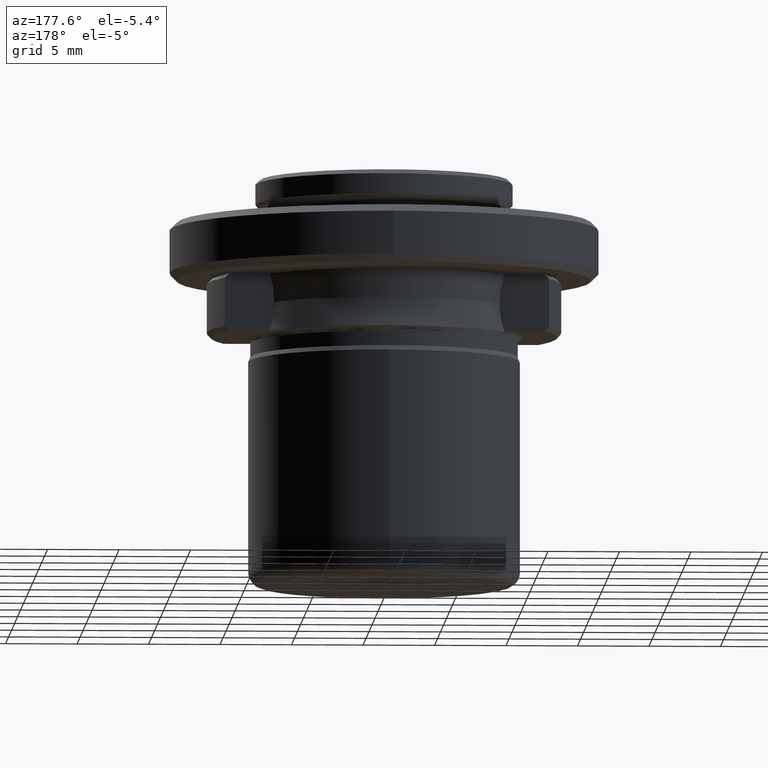
[diagram: clean part render]
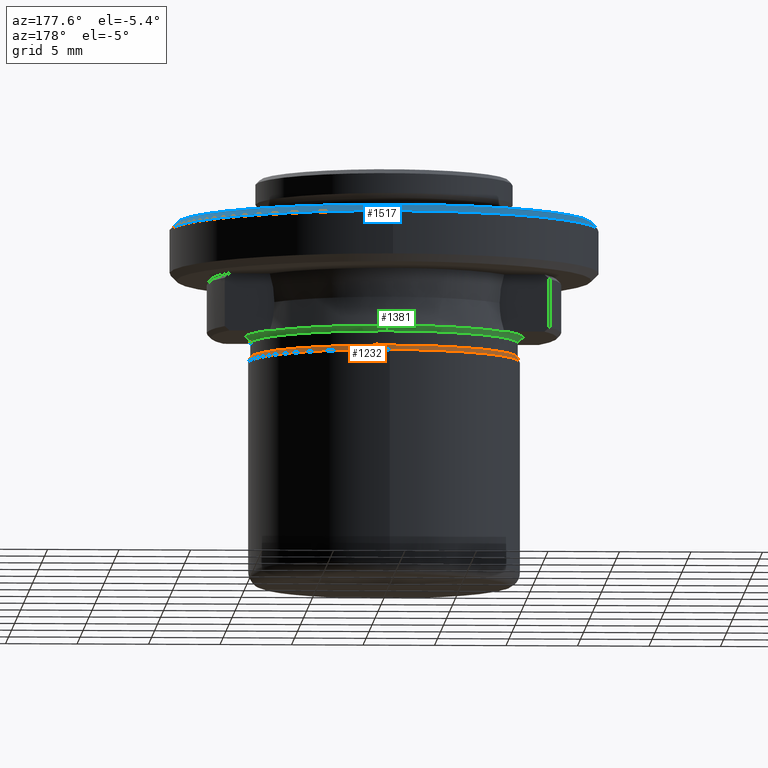
[diagram: same view with three faces highlighted in distinct colors, each labeled with its STEP entity id]
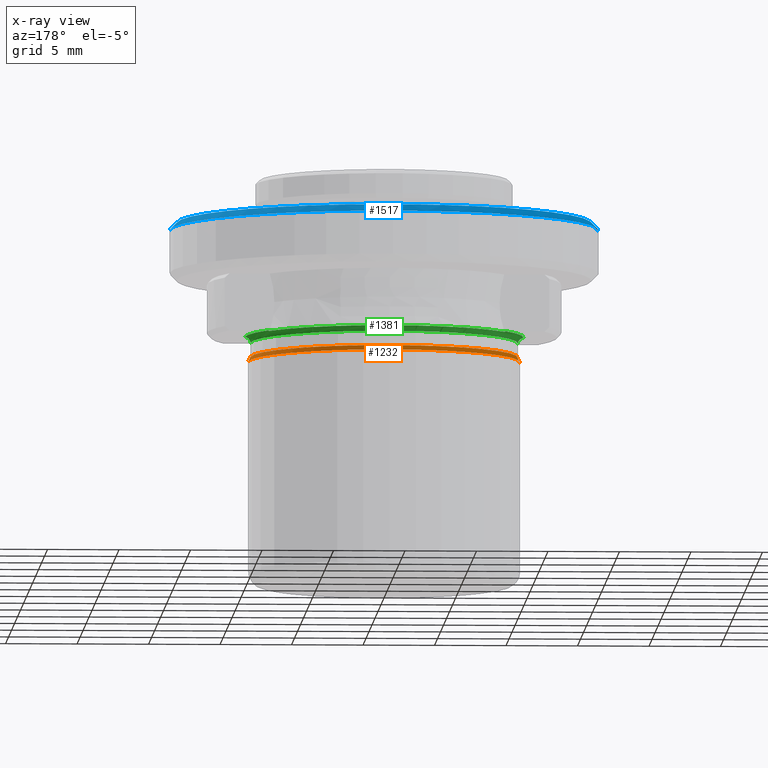
[diagram: x-ray of the same camera — body ghosted, the three highlighted faces saturated]
A machine part, auxiliary view with three faces highlighted in distinct colors.
The next image is the same camera in x-ray (body ghosted, the three faces saturated) — at least one of them is partly hidden behind the body in this view.
Their STEP definitions:

[orange] entity #1232 — the highlighted conical surface has half-angle 25 deg.
#31 = DIRECTION ( 'NONE',  ( -1.000000000000000000, 0.0000000000000000000, 0.0000000000000000000 ) ) ;
#74 = VECTOR ( 'NONE', #324, 1000.000000000000000 ) ;
#76 = VERTEX_POINT ( 'NONE', #841 ) ;
#85 = EDGE_CURVE ( 'NONE', #511, #76, #1617, .T. ) ;
#140 = VERTEX_POINT ( 'NONE', #784 ) ;
#222 = CARTESIAN_POINT ( 'NONE',  ( -9.350000000000003200, 0.0000000000000000000, 3.351676037999996800 ) ) ;
#298 = EDGE_CURVE ( 'NONE', #919, #140, #753, .T. ) ;
#324 = DIRECTION ( 'NONE',  ( 0.4226182618231769700, 5.175581016029717500E-017, -0.9063077869981900300 ) ) ;
#330 = DIRECTION ( 'NONE',  ( 0.0000000000000000000, 0.0000000000000000000, -1.000000000000000000 ) ) ;
#334 = CARTESIAN_POINT ( 'NONE',  ( -9.350000000000003200, 0.0000000000000000000, 3.351676037999999500 ) ) ;
#335 = CARTESIAN_POINT ( 'NONE',  ( 0.0000000000000000000, 0.0000000000000000000, 3.030000000000088200 ) ) ;
#387 = AXIS2_PLACEMENT_3D ( 'NONE', #1310, #477, #1459 ) ;
#409 = CIRCLE ( 'NONE', #387, 9.350000000000003200 ) ;
#472 = CARTESIAN_POINT ( 'NONE',  ( 9.350000000000003200, 1.154229608196380700E-015, 3.351676037999996800 ) ) ;
#477 = DIRECTION ( 'NONE',  ( -0.0000000000000000000, -0.0000000000000000000, -1.000000000000000000 ) ) ;
#482 = DIRECTION ( 'NONE',  ( -1.000000000000000000, 0.0000000000000000000, -9.312726028928122700E-015 ) ) ;
#511 = VERTEX_POINT ( 'NONE', #472 ) ;
#548 = DIRECTION ( 'NONE',  ( 0.0000000000000000000, 0.0000000000000000000, -1.000000000000000000 ) ) ;
#580 = AXIS2_PLACEMENT_3D ( 'NONE', #335, #1316, #482 ) ;
#618 = CIRCLE ( 'NONE', #580, 9.500000000000000000 ) ;
#623 = EDGE_CURVE ( 'NONE', #919, #511, #409, .T. ) ;
#753 = LINE ( 'NONE', #334, #1081 ) ;
#773 = AXIS2_PLACEMENT_3D ( 'NONE', #1380, #548, #1522 ) ;
#784 = CARTESIAN_POINT ( 'NONE',  ( -9.499999999999957400, 0.0000000000000000000, 3.030000000000088200 ) ) ;
#839 = ORIENTED_EDGE ( 'NONE', *, *, #623, .T. ) ;
#841 = CARTESIAN_POINT ( 'NONE',  ( 9.499999999999957400, 1.163414459189980600E-015, 3.030000000000088200 ) ) ;
#869 = CARTESIAN_POINT ( 'NONE',  ( 9.350000000000003200, 1.145044757202775600E-015, 3.351676037999999500 ) ) ;
#895 = CIRCLE ( 'NONE', #773, 9.500000000000000000 ) ;
#919 = VERTEX_POINT ( 'NONE', #222 ) ;
#927 = EDGE_LOOP ( 'NONE', ( #839, #987, #1372, #1103, #1300 ) ) ;
#987 = ORIENTED_EDGE ( 'NONE', *, *, #85, .T. ) ;
#1081 = VECTOR ( 'NONE', #1158, 1000.000000000000000 ) ;
#1103 = ORIENTED_EDGE ( 'NONE', *, *, #1818, .F. ) ;
#1158 = DIRECTION ( 'NONE',  ( -0.4226182618231769700, 0.0000000000000000000, -0.9063077869981900300 ) ) ;
#1223 = FACE_OUTER_BOUND ( 'NONE', #927, .T. ) ;
#1232 = ADVANCED_FACE ( 'NONE', ( #1223 ), #1562, .T. ) ;
#1295 = VERTEX_POINT ( 'NONE', #1662 ) ;
#1300 = ORIENTED_EDGE ( 'NONE', *, *, #298, .F. ) ;
#1310 = CARTESIAN_POINT ( 'NONE',  ( 0.0000000000000000000, 0.0000000000000000000, 3.351676037999996800 ) ) ;
#1316 = DIRECTION ( 'NONE',  ( 0.0000000000000000000, 0.0000000000000000000, -1.000000000000000000 ) ) ;
#1372 = ORIENTED_EDGE ( 'NONE', *, *, #1797, .F. ) ;
#1380 = CARTESIAN_POINT ( 'NONE',  ( 0.0000000000000000000, 0.0000000000000000000, 3.030000000000088200 ) ) ;
#1456 = CARTESIAN_POINT ( 'NONE',  ( 0.0000000000000000000, 0.0000000000000000000, 3.351676037999999500 ) ) ;
#1459 = DIRECTION ( 'NONE',  ( 1.000000000000000000, 0.0000000000000000000, 2.782978838465465100E-016 ) ) ;
#1522 = DIRECTION ( 'NONE',  ( -1.000000000000000000, 0.0000000000000000000, -9.312726028928122700E-015 ) ) ;
#1562 = CONICAL_SURFACE ( 'NONE', #1721, 9.350000000000003200, 0.4363323130895863100 ) ;
#1617 = LINE ( 'NONE', #869, #74 ) ;
#1662 = CARTESIAN_POINT ( 'NONE',  ( 1.163414459189985500E-015, 9.500000000000000000, 3.030000000000088200 ) ) ;
#1721 = AXIS2_PLACEMENT_3D ( 'NONE', #1456, #330, #31 ) ;
#1797 = EDGE_CURVE ( 'NONE', #1295, #76, #618, .T. ) ;
#1818 = EDGE_CURVE ( 'NONE', #140, #1295, #895, .T. ) ;

[blue] entity #1517 — the highlighted conical surface has half-angle 45 deg.
#10 = CARTESIAN_POINT ( 'NONE',  ( 0.0000000000000000000, 15.00000000000000000, 12.25000000000000000 ) ) ;
#27 = CARTESIAN_POINT ( 'NONE',  ( 0.0000000000000000000, 0.0000000000000000000, 12.25000000000000000 ) ) ;
#30 = DIRECTION ( 'NONE',  ( -1.000000000000000000, 0.0000000000000000000, 0.0000000000000000000 ) ) ;
#39 = AXIS2_PLACEMENT_3D ( 'NONE', #740, #872, #30 ) ;
#82 = EDGE_CURVE ( 'NONE', #360, #1139, #807, .T. ) ;
#150 = DIRECTION ( 'NONE',  ( -1.000000000000000000, 0.0000000000000000000, 0.0000000000000000000 ) ) ;
#183 = DIRECTION ( 'NONE',  ( -1.000000000000000000, 0.0000000000000000000, 0.0000000000000000000 ) ) ;
#191 = CONICAL_SURFACE ( 'NONE', #39, 14.50000000000000000, 0.7853981633974466100 ) ;
#207 = CARTESIAN_POINT ( 'NONE',  ( -14.50000000000000000, 0.0000000000000000000, 12.75000000000000200 ) ) ;
#235 = CIRCLE ( 'NONE', #1686, 15.00000000000000000 ) ;
#258 = EDGE_CURVE ( 'NONE', #316, #360, #828, .T. ) ;
#316 = VERTEX_POINT ( 'NONE', #1469 ) ;
#329 = CARTESIAN_POINT ( 'NONE',  ( -15.00000000000000000, 0.0000000000000000000, 12.25000000000000000 ) ) ;
#359 = EDGE_CURVE ( 'NONE', #316, #1251, #985, .T. ) ;
#360 = VERTEX_POINT ( 'NONE', #1696 ) ;
#563 = VERTEX_POINT ( 'NONE', #329 ) ;
#680 = ORIENTED_EDGE ( 'NONE', *, *, #258, .T. ) ;
#687 = EDGE_LOOP ( 'NONE', ( #932, #680, #1464, #1276, #1195 ) ) ;
#740 = CARTESIAN_POINT ( 'NONE',  ( 0.0000000000000000000, 0.0000000000000000000, 12.75000000000000200 ) ) ;
#761 = CARTESIAN_POINT ( 'NONE',  ( 0.0000000000000000000, 0.0000000000000000000, 12.25000000000000000 ) ) ;
#807 = CIRCLE ( 'NONE', #1128, 15.00000000000000000 ) ;
#817 = EDGE_CURVE ( 'NONE', #1251, #563, #1684, .T. ) ;
#828 = LINE ( 'NONE', #1323, #1161 ) ;
#872 = DIRECTION ( 'NONE',  ( 0.0000000000000000000, 0.0000000000000000000, -1.000000000000000000 ) ) ;
#888 = CARTESIAN_POINT ( 'NONE',  ( -14.49999999999996300, 0.0000000000000000000, 12.75000000000003900 ) ) ;
#904 = DIRECTION ( 'NONE',  ( -1.000000000000000000, 0.0000000000000000000, 0.0000000000000000000 ) ) ;
#932 = ORIENTED_EDGE ( 'NONE', *, *, #359, .F. ) ;
#936 = VECTOR ( 'NONE', #1751, 1000.000000000000000 ) ;
#967 = FACE_OUTER_BOUND ( 'NONE', #687, .T. ) ;
#983 = DIRECTION ( 'NONE',  ( -0.0000000000000000000, -0.0000000000000000000, 1.000000000000000000 ) ) ;
#985 = CIRCLE ( 'NONE', #1383, 14.49999999999996300 ) ;
#1018 = DIRECTION ( 'NONE',  ( -0.0000000000000000000, -0.0000000000000000000, 1.000000000000000000 ) ) ;
#1128 = AXIS2_PLACEMENT_3D ( 'NONE', #27, #1018, #183 ) ;
#1139 = VERTEX_POINT ( 'NONE', #10 ) ;
#1161 = VECTOR ( 'NONE', #1755, 1000.000000000000000 ) ;
#1195 = ORIENTED_EDGE ( 'NONE', *, *, #817, .F. ) ;
#1251 = VERTEX_POINT ( 'NONE', #888 ) ;
#1276 = ORIENTED_EDGE ( 'NONE', *, *, #1446, .T. ) ;
#1323 = CARTESIAN_POINT ( 'NONE',  ( 14.50000000000000000, 1.775737858763662000E-015, 12.75000000000000200 ) ) ;
#1383 = AXIS2_PLACEMENT_3D ( 'NONE', #1836, #983, #150 ) ;
#1446 = EDGE_CURVE ( 'NONE', #1139, #563, #235, .T. ) ;
#1464 = ORIENTED_EDGE ( 'NONE', *, *, #82, .T. ) ;
#1469 = CARTESIAN_POINT ( 'NONE',  ( 14.49999999999996300, 1.806354028742343400E-015, 12.75000000000003900 ) ) ;
#1517 = ADVANCED_FACE ( 'NONE', ( #967 ), #191, .T. ) ;
#1684 = LINE ( 'NONE', #207, #936 ) ;
#1686 = AXIS2_PLACEMENT_3D ( 'NONE', #761, #1752, #904 ) ;
#1696 = CARTESIAN_POINT ( 'NONE',  ( 15.00000000000000000, 1.836970198721029600E-015, 12.25000000000000000 ) ) ;
#1751 = DIRECTION ( 'NONE',  ( -0.7071067811865463500, 0.0000000000000000000, -0.7071067811865487900 ) ) ;
#1752 = DIRECTION ( 'NONE',  ( -0.0000000000000000000, -0.0000000000000000000, 1.000000000000000000 ) ) ;
#1755 = DIRECTION ( 'NONE',  ( 0.7071067811865463500, 8.659560562354918100E-017, -0.7071067811865487900 ) ) ;
#1836 = CARTESIAN_POINT ( 'NONE',  ( 0.0000000000000000000, 0.0000000000000000000, 12.75000000000003900 ) ) ;

[green] entity #1381 — the highlighted toroidal blend (fillet) surface has major radius 9.75 mm and minor (blend) radius 0.4 mm.
#59 = CARTESIAN_POINT ( 'NONE',  ( -8.314009201291112200, 5.000000001154024400, 4.749999998633676900 ) ) ;
#86 = CARTESIAN_POINT ( 'NONE',  ( -9.350000000108330800, 1.145044757216041900E-015, 4.349999999879580400 ) ) ;
#103 = B_SPLINE_CURVE_WITH_KNOTS ( 'NONE', 3,
 ( #493, #1603, #210, #1180 ),
 .UNSPECIFIED., .F., .F.,
 ( 4, 4 ),
 ( 0.0000000000000000000, 0.0001669516242611762100 ),
 .UNSPECIFIED. ) ;
#111 = AXIS2_PLACEMENT_3D ( 'NONE', #1641, #792, #448 ) ;
#210 = CARTESIAN_POINT ( 'NONE',  ( 8.314009200938841100, 5.000000000000000000, 4.749999999677823900 ) ) ;
#219 = ORIENTED_EDGE ( 'NONE', *, *, #1003, .F. ) ;
#234 = VERTEX_POINT ( 'NONE', #629 ) ;
#259 = EDGE_CURVE ( 'NONE', #234, #1354, #103, .T. ) ;
#261 = CARTESIAN_POINT ( 'NONE',  ( 9.750000000326270600, 0.0000000000000000000, 4.349999999673730900 ) ) ;
#267 = CARTESIAN_POINT ( 'NONE',  ( 9.350000000108330800, 0.0000000000000000000, 4.349999999879580400 ) ) ;
#269 = AXIS2_PLACEMENT_3D ( 'NONE', #261, #1225, #404 ) ;
#274 = CIRCLE ( 'NONE', #1793, 9.750000000146760800 ) ;
#363 = ORIENTED_EDGE ( 'NONE', *, *, #1213, .F. ) ;
#393 = CIRCLE ( 'NONE', #111, 9.350000000108330800 ) ;
#396 = EDGE_LOOP ( 'NONE', ( #363, #913, #664, #1538, #1541, #542, #984, #219 ) ) ;
#404 = DIRECTION ( 'NONE',  ( 0.0000000000000000000, 0.0000000000000000000, -1.000000000000000000 ) ) ;
#448 = DIRECTION ( 'NONE',  ( -1.000000000000000000, 0.0000000000000000000, 0.0000000000000000000 ) ) ;
#455 = CIRCLE ( 'NONE', #479, 9.750000000796468700 ) ;
#479 = AXIS2_PLACEMENT_3D ( 'NONE', #729, #1719, #865 ) ;
#493 = CARTESIAN_POINT ( 'NONE',  ( 8.205382974800770100, 5.000000000000000900, 4.724235040159770800 ) ) ;
#499 = CARTESIAN_POINT ( 'NONE',  ( -8.259008784567335200, 5.000000000000000000, 4.741517755171558200 ) ) ;
#518 = VERTEX_POINT ( 'NONE', #1308 ) ;
#542 = ORIENTED_EDGE ( 'NONE', *, *, #774, .F. ) ;
#553 = CARTESIAN_POINT ( 'NONE',  ( 0.0000000000000000000, 0.0000000000000000000, 4.349999999673730900 ) ) ;
#557 = DIRECTION ( 'NONE',  ( 0.0000000000000000000, 9.026779162063304700E-017, 1.000000000000000000 ) ) ;
#585 = CIRCLE ( 'NONE', #1525, 0.4000000002154814300 ) ;
#596 = EDGE_CURVE ( 'NONE', #1812, #1712, #455, .T. ) ;
#629 = CARTESIAN_POINT ( 'NONE',  ( 8.205382974800770100, 5.000000000000000900, 4.724235040159770800 ) ) ;
#664 = ORIENTED_EDGE ( 'NONE', *, *, #1493, .T. ) ;
#676 = EDGE_CURVE ( 'NONE', #234, #518, #1492, .T. ) ;
#718 = CARTESIAN_POINT ( 'NONE',  ( 0.0000000000000000000, 0.0000000000000000000, 4.749999999889213100 ) ) ;
#729 = CARTESIAN_POINT ( 'NONE',  ( 0.0000000000000000000, 0.0000000000000000000, 4.749999999889213100 ) ) ;
#744 = CARTESIAN_POINT ( 'NONE',  ( -9.750000000326270600, 1.194030629208625900E-015, 4.349999999673730900 ) ) ;
#774 = EDGE_CURVE ( 'NONE', #804, #1354, #274, .T. ) ;
#792 = DIRECTION ( 'NONE',  ( 0.0000000000000000000, -0.0000000000000000000, -1.000000000000000000 ) ) ;
#804 = VERTEX_POINT ( 'NONE', #1321 ) ;
#810 = TOROIDAL_SURFACE ( 'NONE', #1198, 9.750000000326270600, 0.4000000002154814300 ) ;
#815 = CARTESIAN_POINT ( 'NONE',  ( 8.370334521264656000, 4.999999999999999100, 4.749999999889213100 ) ) ;
#850 = DIRECTION ( 'NONE',  ( 1.000000000000000000, 0.0000000000000000000, 0.0000000000000000000 ) ) ;
#865 = DIRECTION ( 'NONE',  ( 1.000000000000000000, 0.0000000000000000000, 0.0000000000000000000 ) ) ;
#878 = DIRECTION ( 'NONE',  ( -1.000000000000000000, 1.224646799147352200E-016, 0.0000000000000000000 ) ) ;
#891 = B_SPLINE_CURVE_WITH_KNOTS ( 'NONE', 3,
 ( #1599, #59, #499, #1477 ),
 .UNSPECIFIED., .F., .F.,
 ( 4, 4 ),
 ( 0.0000000000000000000, 0.0001669516244480452800 ),
 .UNSPECIFIED. ) ;
#907 = DIRECTION ( 'NONE',  ( 1.000000000000000000, 0.0000000000000000000, 0.0000000000000000000 ) ) ;
#913 = ORIENTED_EDGE ( 'NONE', *, *, #596, .T. ) ;
#984 = ORIENTED_EDGE ( 'NONE', *, *, #1325, .T. ) ;
#994 = VERTEX_POINT ( 'NONE', #86 ) ;
#1003 = EDGE_CURVE ( 'NONE', #994, #1621, #393, .T. ) ;
#1118 = AXIS2_PLACEMENT_3D ( 'NONE', #1395, #557, #1531 ) ;
#1180 = CARTESIAN_POINT ( 'NONE',  ( 8.370334521264656000, 4.999999999999999100, 4.749999999889213100 ) ) ;
#1198 = AXIS2_PLACEMENT_3D ( 'NONE', #553, #1675, #907 ) ;
#1213 = EDGE_CURVE ( 'NONE', #1812, #994, #585, .T. ) ;
#1225 = DIRECTION ( 'NONE',  ( 0.0000000000000000000, -1.000000000000000000, 0.0000000000000000000 ) ) ;
#1308 = CARTESIAN_POINT ( 'NONE',  ( -8.205382973227298000, 5.000000000000000900, 4.724235039559845400 ) ) ;
#1321 = CARTESIAN_POINT ( 'NONE',  ( 9.750000000236514800, 0.0000000000000000000, 4.749999999889213100 ) ) ;
#1325 = EDGE_CURVE ( 'NONE', #804, #1621, #1490, .T. ) ;
#1354 = VERTEX_POINT ( 'NONE', #815 ) ;
#1381 = ADVANCED_FACE ( 'NONE', ( #1442 ), #810, .F. ) ;
#1395 = CARTESIAN_POINT ( 'NONE',  ( 0.0000000000000000000, 0.0000000000000000000, 4.724235039728594800 ) ) ;
#1432 = CARTESIAN_POINT ( 'NONE',  ( -8.370334521211765000, 4.999999999999999100, 4.749999999889213100 ) ) ;
#1442 = FACE_OUTER_BOUND ( 'NONE', #396, .T. ) ;
#1461 = CARTESIAN_POINT ( 'NONE',  ( -9.750000000561367800, 1.194030629237417500E-015, 4.749999999889213100 ) ) ;
#1477 = CARTESIAN_POINT ( 'NONE',  ( -8.205382973227298000, 5.000000000000000900, 4.724235039559845400 ) ) ;
#1490 = CIRCLE ( 'NONE', #269, 0.4000000002154814300 ) ;
#1492 = CIRCLE ( 'NONE', #1118, 9.608762133607653400 ) ;
#1493 = EDGE_CURVE ( 'NONE', #1712, #518, #891, .T. ) ;
#1525 = AXIS2_PLACEMENT_3D ( 'NONE', #744, #1733, #878 ) ;
#1531 = DIRECTION ( 'NONE',  ( 0.0000000000000000000, -1.000000000000000000, 9.026779161851814800E-017 ) ) ;
#1538 = ORIENTED_EDGE ( 'NONE', *, *, #676, .F. ) ;
#1541 = ORIENTED_EDGE ( 'NONE', *, *, #259, .T. ) ;
#1599 = CARTESIAN_POINT ( 'NONE',  ( -8.370334521211765000, 4.999999999999999100, 4.749999999889213100 ) ) ;
#1603 = CARTESIAN_POINT ( 'NONE',  ( 8.259008784446502100, 5.000000000000000000, 4.741517755132616000 ) ) ;
#1621 = VERTEX_POINT ( 'NONE', #267 ) ;
#1641 = CARTESIAN_POINT ( 'NONE',  ( 0.0000000000000000000, 0.0000000000000000000, 4.349999999879580400 ) ) ;
#1675 = DIRECTION ( 'NONE',  ( -0.0000000000000000000, 0.0000000000000000000, 1.000000000000000000 ) ) ;
#1708 = DIRECTION ( 'NONE',  ( -0.0000000000000000000, 0.0000000000000000000, 1.000000000000000000 ) ) ;
#1712 = VERTEX_POINT ( 'NONE', #1432 ) ;
#1719 = DIRECTION ( 'NONE',  ( -0.0000000000000000000, 0.0000000000000000000, -1.000000000000000000 ) ) ;
#1733 = DIRECTION ( 'NONE',  ( 1.224646799147353200E-016, 1.000000000000000000, 0.0000000000000000000 ) ) ;
#1793 = AXIS2_PLACEMENT_3D ( 'NONE', #718, #1708, #850 ) ;
#1812 = VERTEX_POINT ( 'NONE', #1461 ) ;